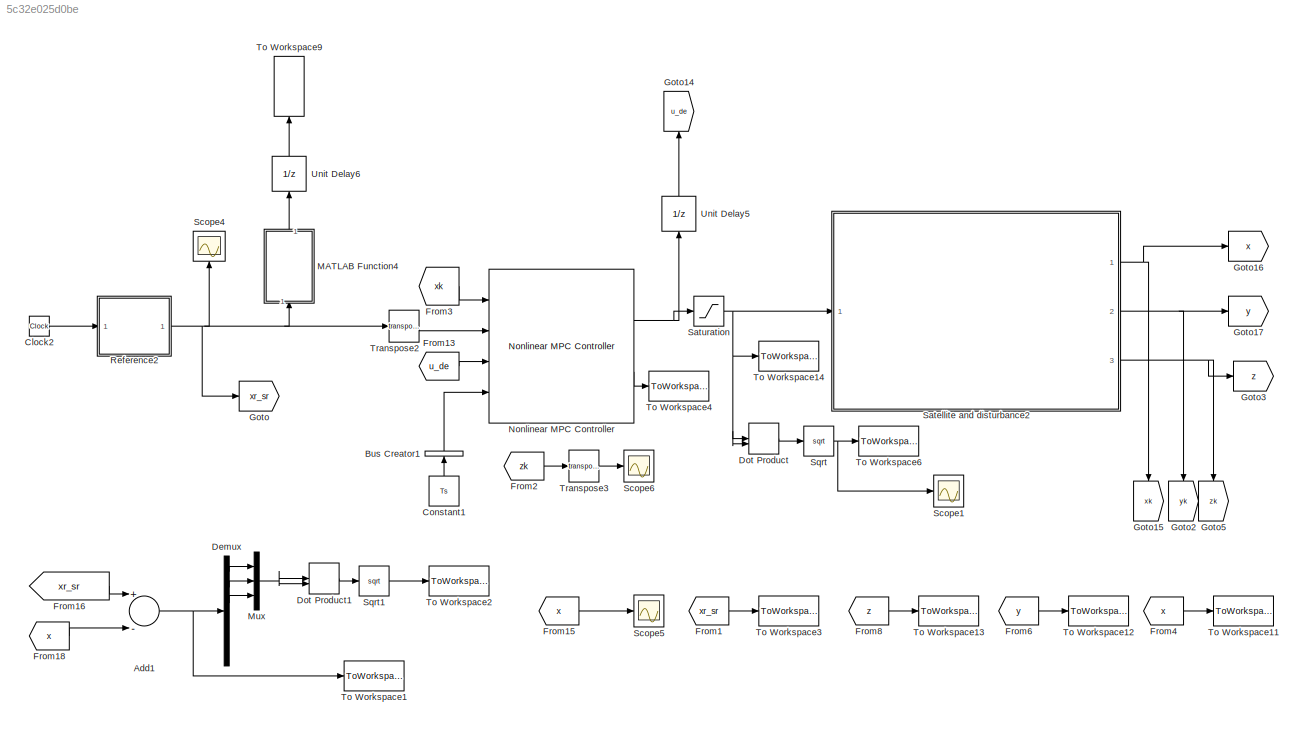
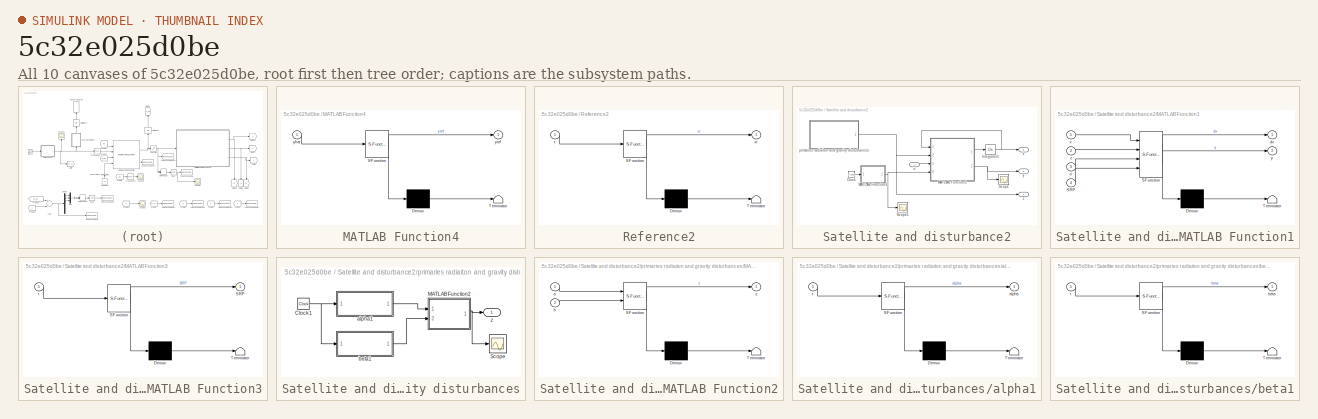
[diagram: thumbnail index - all 10 canvases of the model, root first then tree order]
MODEL slx_5c32e025d0be
KIND model
CONFIG AbsTol = auto
CONFIG EnableMultiTasking = off
CONFIG FixedStep = auto
CONFIG MaxStep = auto
CONFIG MinStep = auto
CONFIG RelTol = 1e-4
CONFIG SampleTimeConstraint = Unconstrained
CONFIG Solver = ode45
CONFIG SolverName = ode45
CONFIG StartTime = 0.0
CONFIG StopTime = simTime
BLOCK [Sum] Add1
  InputSameDT = off
  Inputs = +-
  OutDataTypeStr = Inherit: Inherit via internal rule
  Ports = [2, 1]
  SaturateOnIntegerOverflow = off
BLOCK [BusCreator] Bus Creator1
  DisplayOption = bar
  InheritFromInputs = off
  Inputs = 1
  NonVirtualBus = on
  OutDataTypeStr = Bus: myBusObject
  Ports = [1, 1]
BLOCK [Clock] Clock2
BLOCK [Constant] Constant1
  Value = Ts
BLOCK [Demux] Demux
  DisplayOption = bar
  Outputs = 6
  Ports = [1, 6]
BLOCK [DotProduct] Dot Product
  OutDataTypeStr = Inherit: Inherit via internal rule
BLOCK [DotProduct] Dot Product1
  OutDataTypeStr = Inherit: Inherit via internal rule
BLOCK [From] From1
  GotoTag = xr_sr
BLOCK [From] From13
  GotoTag = u_de
BLOCK [From] From15
  GotoTag = x
BLOCK [From] From16
  GotoTag = xr_sr
BLOCK [From] From18
  GotoTag = x
BLOCK [From] From2
  GotoTag = zk
BLOCK [From] From3
  GotoTag = xk
BLOCK [From] From4
  GotoTag = x
BLOCK [From] From6
  GotoTag = y
BLOCK [From] From8
  GotoTag = z
BLOCK [Goto] Goto
  GotoTag = xr_sr
BLOCK [Goto] Goto14
  GotoTag = u_de
BLOCK [Goto] Goto15
  GotoTag = xk
BLOCK [Goto] Goto16
  GotoTag = x
BLOCK [Goto] Goto17
  GotoTag = y
BLOCK [Goto] Goto2
  GotoTag = yk
BLOCK [Goto] Goto3
  GotoTag = z
BLOCK [Goto] Goto5
  GotoTag = zk
BLOCK [SubSystem] MATLAB Function4
  ErrorFcn = Stateflow.Translate.translate
  PermitHierarchicalResolution = ExplicitOnly
  Ports = [1, 1]
  RequestExecContextInheritance = off
  SFBlockType = MATLAB Function
  TreatAsAtomicUnit = on
BLOCK [Demux] MATLAB Function4/ Demux 
  Outputs = 1
  Ports = [1, 1]
BLOCK [S-Function] MATLAB Function4/ SFunction 
  EnableBusSupport = on
  FunctionName = sf_sfun
  PortCounts = [1 2]
  Ports = [1, 2]
  SFcnIsStateOwnerBlock = off
  SFunctionDeploymentMode = off
  Tag = Stateflow S-Function 3
BLOCK [Terminator] MATLAB Function4/ Terminator 
BLOCK [Inport] MATLAB Function4/yhat
  IconDisplay = Port number
BLOCK [Outport] MATLAB Function4/yref
  IconDisplay = Port number
BLOCK [Mux] Mux
  DisplayOption = bar
  Inputs = 3
  Ports = [3, 1]
BLOCK [Reference] Nonlinear MPC Controller  REF=mpclib/Nonlinear MPC Controller  (lib defined in mdl_ae329e0e0455)
  Ports = [4, 2]
  SCDEnableBlockLinearizationSpecification = on
  SourceBlock = mpclib/Nonlinear MPC Controller
  SourceProductBaseCode = MP
  SourceProductName = Model Predictive Control Toolbox
  SourceType = NonlinearMPC
BLOCK [SubSystem] Reference2
  ErrorFcn = Stateflow.Translate.translate
  PermitHierarchicalResolution = ExplicitOnly
  Ports = [1, 1]
  RequestExecContextInheritance = off
  SFBlockType = MATLAB Function
  TreatAsAtomicUnit = on
BLOCK [Demux] Reference2/ Demux 
  Outputs = 1
  Ports = [1, 1]
BLOCK [S-Function] Reference2/ SFunction 
  EnableBusSupport = on
  FunctionName = sf_sfun
  Parameters = L2,Omega,Omega_z,c,k
  PortCounts = [1 2]
  Ports = [1, 2]
  SFcnIsStateOwnerBlock = off
  SFunctionDeploymentMode = off
  Tag = Stateflow S-Function 8
BLOCK [Terminator] Reference2/ Terminator 
BLOCK [Inport] Reference2/t
  IconDisplay = Port number
BLOCK [Outport] Reference2/xr
  IconDisplay = Port number
BLOCK [SubSystem] Satellite and disturbance2
  Ports = [1, 3]
  RequestExecContextInheritance = off
BLOCK [Clock] Satellite and disturbance2/Clock
BLOCK [Integrator] Satellite and disturbance2/Integrator1
  InitialCondition = x0
  Ports = [1, 1]
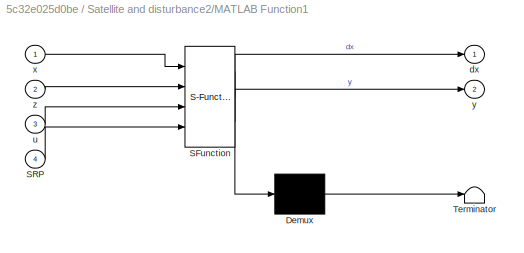
BLOCK [SubSystem] Satellite and disturbance2/MATLAB Function1
  ErrorFcn = Stateflow.Translate.translate
  PermitHierarchicalResolution = ExplicitOnly
  Ports = [4, 2]
  RequestExecContextInheritance = off
  SFBlockType = MATLAB Function
  TreatAsAtomicUnit = on
BLOCK [Demux] Satellite and disturbance2/MATLAB Function1/ Demux 
  Outputs = 1
  Ports = [1, 1]
BLOCK [S-Function] Satellite and disturbance2/MATLAB Function1/ SFunction 
  EnableBusSupport = on
  FunctionName = sf_sfun
  Parameters = mu
  PortCounts = [4 3]
  Ports = [4, 3]
  SFcnIsStateOwnerBlock = off
  SFunctionDeploymentMode = off
  Tag = Stateflow S-Function 11
BLOCK [Terminator] Satellite and disturbance2/MATLAB Function1/ Terminator 
BLOCK [Inport] Satellite and disturbance2/MATLAB Function1/SRP
  IconDisplay = Port number
  Port = 4
BLOCK [Outport] Satellite and disturbance2/MATLAB Function1/dx
  IconDisplay = Port number
BLOCK [Inport] Satellite and disturbance2/MATLAB Function1/u
  IconDisplay = Port number
  Port = 3
BLOCK [Inport] Satellite and disturbance2/MATLAB Function1/x
  IconDisplay = Port number
BLOCK [Outport] Satellite and disturbance2/MATLAB Function1/y
  IconDisplay = Port number
  Port = 2
BLOCK [Inport] Satellite and disturbance2/MATLAB Function1/z
  IconDisplay = Port number
  Port = 2
BLOCK [SubSystem] Satellite and disturbance2/MATLAB Function3
  ErrorFcn = Stateflow.Translate.translate
  PermitHierarchicalResolution = ExplicitOnly
  Ports = [1, 1]
  RequestExecContextInheritance = off
  SFBlockType = MATLAB Function
  TreatAsAtomicUnit = on
BLOCK [Demux] Satellite and disturbance2/MATLAB Function3/ Demux 
  Outputs = 1
  Ports = [1, 1]
BLOCK [S-Function] Satellite and disturbance2/MATLAB Function3/ SFunction 
  EnableBusSupport = on
  FunctionName = sf_sfun
  Parameters = Gsc,sped,srp,zeta
  PortCounts = [1 2]
  Ports = [1, 2]
  SFcnIsStateOwnerBlock = off
  SFunctionDeploymentMode = off
  Tag = Stateflow S-Function 2
BLOCK [Terminator] Satellite and disturbance2/MATLAB Function3/ Terminator 
BLOCK [Outport] Satellite and disturbance2/MATLAB Function3/SRP
  IconDisplay = Port number
BLOCK [Inport] Satellite and disturbance2/MATLAB Function3/t
  IconDisplay = Port number
BLOCK [Scope] Satellite and disturbance2/Scope
  Floating = off
  NumInputPorts = 1
  Ports = [1]
  ScopeSpecificationString = Simulink.scopes.TimeScopeBlockCfg('CurrentConfiguration', extmgr.ConfigurationSet(extmgr.Configuration('Core','General UI',true),extmgr.Configuration('Core','Source UI',true),extmgr.Configuration('Sources','WiredSimulink',true,'DataLoggingVariableName','ScopeData1'),extmgr.Configuration('Visuals','Time Domain',true,'SerializedDisplays',{struct('MinYLimReal','-0.26036','MaxYLimReal','1.35737','YLab...<+1525ch>
BLOCK [Scope] Satellite and disturbance2/Scope1
  Floating = off
  NumInputPorts = 1
  Ports = [1]
  ScopeSpecificationString = Simulink.scopes.TimeScopeBlockCfg('CurrentConfiguration', extmgr.ConfigurationSet(extmgr.Configuration('Core','General UI',true),extmgr.Configuration('Core','Source UI',true),extmgr.Configuration('Sources','WiredSimulink',true,'DataLoggingVariableName','ScopeData2'),extmgr.Configuration('Visuals','Time Domain',true,'SerializedDisplays',{struct('MinYLimReal','-0.0000006','MaxYLimReal','0.0000051','...<+1460ch>
BLOCK [SubSystem] Satellite and disturbance2/primaries radiaiton and gravity disturbances
  Ports = [0, 1]
  RequestExecContextInheritance = off
BLOCK [Clock] Satellite and disturbance2/primaries radiaiton and gravity disturbances/Clock1
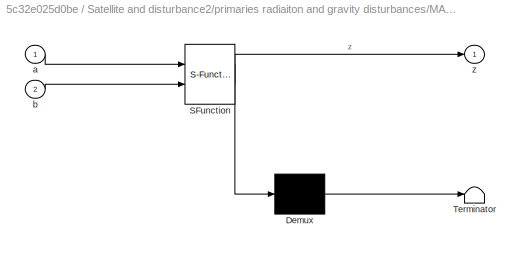
BLOCK [SubSystem] Satellite and disturbance2/primaries radiaiton and gravity disturbances/MATLAB Function2
  ErrorFcn = Stateflow.Translate.translate
  PermitHierarchicalResolution = ExplicitOnly
  Ports = [2, 1]
  RequestExecContextInheritance = off
  SFBlockType = MATLAB Function
  TreatAsAtomicUnit = on
BLOCK [Demux] Satellite and disturbance2/primaries radiaiton and gravity disturbances/MATLAB Function2/ Demux 
  Outputs = 1
  Ports = [1, 1]
BLOCK [S-Function] Satellite and disturbance2/primaries radiaiton and gravity disturbances/MATLAB Function2/ SFunction 
  EnableBusSupport = on
  FunctionName = sf_sfun
  Parameters = disturbance,mu
  PortCounts = [2 2]
  Ports = [2, 2]
  SFcnIsStateOwnerBlock = off
  SFunctionDeploymentMode = off
  Tag = Stateflow S-Function 12
BLOCK [Terminator] Satellite and disturbance2/primaries radiaiton and gravity disturbances/MATLAB Function2/ Terminator 
BLOCK [Inport] Satellite and disturbance2/primaries radiaiton and gravity disturbances/MATLAB Function2/a
  IconDisplay = Port number
BLOCK [Inport] Satellite and disturbance2/primaries radiaiton and gravity disturbances/MATLAB Function2/b
  IconDisplay = Port number
  Port = 2
BLOCK [Outport] Satellite and disturbance2/primaries radiaiton and gravity disturbances/MATLAB Function2/z
  IconDisplay = Port number
BLOCK [Scope] Satellite and disturbance2/primaries radiaiton and gravity disturbances/Scope
  Floating = off
  NumInputPorts = 1
  Ports = [1]
  ScopeSpecificationString = Simulink.scopes.TimeScopeBlockCfg('CurrentConfiguration', extmgr.ConfigurationSet(extmgr.Configuration('Core','General UI',true),extmgr.Configuration('Core','Source UI',true),extmgr.Configuration('Sources','WiredSimulink',true,'DataLoggingVariableName','ScopeData1'),extmgr.Configuration('Visuals','Time Domain',true,'SerializedDisplays',{struct('MinYLimReal','-1.00000','MaxYLimReal','1.00000','YLab...<+1440ch>
BLOCK [SubSystem] Satellite and disturbance2/primaries radiaiton and gravity disturbances/alpha1
  ErrorFcn = Stateflow.Translate.translate
  PermitHierarchicalResolution = ExplicitOnly
  Ports = [1, 1]
  RequestExecContextInheritance = off
  SFBlockType = MATLAB Function
  TreatAsAtomicUnit = on
BLOCK [Demux] Satellite and disturbance2/primaries radiaiton and gravity disturbances/alpha1/ Demux 
  Outputs = 1
  Ports = [1, 1]
BLOCK [S-Function] Satellite and disturbance2/primaries radiaiton and gravity disturbances/alpha1/ SFunction 
  EnableBusSupport = on
  FunctionName = sf_sfun
  Parameters = a,e,phi
  PortCounts = [1 2]
  Ports = [1, 2]
  SFcnIsStateOwnerBlock = off
  SFunctionDeploymentMode = off
  Tag = Stateflow S-Function 13
BLOCK [Terminator] Satellite and disturbance2/primaries radiaiton and gravity disturbances/alpha1/ Terminator 
BLOCK [Outport] Satellite and disturbance2/primaries radiaiton and gravity disturbances/alpha1/alpha
  IconDisplay = Port number
BLOCK [Inport] Satellite and disturbance2/primaries radiaiton and gravity disturbances/alpha1/t
  IconDisplay = Port number
BLOCK [SubSystem] Satellite and disturbance2/primaries radiaiton and gravity disturbances/beta1
  ErrorFcn = Stateflow.Translate.translate
  PermitHierarchicalResolution = ExplicitOnly
  Ports = [1, 1]
  RequestExecContextInheritance = off
  SFBlockType = MATLAB Function
  TreatAsAtomicUnit = on
BLOCK [Demux] Satellite and disturbance2/primaries radiaiton and gravity disturbances/beta1/ Demux 
  Outputs = 1
  Ports = [1, 1]
BLOCK [S-Function] Satellite and disturbance2/primaries radiaiton and gravity disturbances/beta1/ SFunction 
  EnableBusSupport = on
  FunctionName = sf_sfun
  Parameters = b,e,phi
  PortCounts = [1 2]
  Ports = [1, 2]
  SFcnIsStateOwnerBlock = off
  SFunctionDeploymentMode = off
  Tag = Stateflow S-Function 14
BLOCK [Terminator] Satellite and disturbance2/primaries radiaiton and gravity disturbances/beta1/ Terminator 
BLOCK [Outport] Satellite and disturbance2/primaries radiaiton and gravity disturbances/beta1/beta
  IconDisplay = Port number
BLOCK [Inport] Satellite and disturbance2/primaries radiaiton and gravity disturbances/beta1/t
  IconDisplay = Port number
BLOCK [Outport] Satellite and disturbance2/primaries radiaiton and gravity disturbances/z
  IconDisplay = Port number
BLOCK [Inport] Satellite and disturbance2/u
  IconDisplay = Port number
BLOCK [Outport] Satellite and disturbance2/x 
  IconDisplay = Port number
BLOCK [Outport] Satellite and disturbance2/y
  IconDisplay = Port number
  Port = 2
BLOCK [Outport] Satellite and disturbance2/z
  IconDisplay = Port number
  Port = 3
BLOCK [Saturate] Saturation
  InputPortMap = u0
  LowerLimit = -satValue
  Ports = [1, 1]
  UpperLimit = satValue
BLOCK [Scope] Scope1
  Floating = off
  NumInputPorts = 1
  Ports = [1]
  ScopeSpecificationString = Simulink.scopes.TimeScopeBlockCfg('CurrentConfiguration', extmgr.ConfigurationSet(extmgr.Configuration('Core','General UI',true),extmgr.Configuration('Core','Source UI',true),extmgr.Configuration('Sources','WiredSimulink',true,'DataLoggingVariableName','ScopeData1'),extmgr.Configuration('Visuals','Time Domain',true,'SerializedDisplays',{struct('MinYLimReal','-1.03728','MaxYLimReal','17.8037','YLab...<+1463ch>
BLOCK [Scope] Scope4
  Floating = off
  NumInputPorts = 1
  Ports = [1]
  ScopeSpecificationString = Simulink.scopes.TimeScopeBlockCfg('CurrentConfiguration', extmgr.ConfigurationSet(extmgr.Configuration('Core','General UI',true),extmgr.Configuration('Core','Source UI',true),extmgr.Configuration('Sources','WiredSimulink',true,'DataLoggingVariableName','ScopeData1'),extmgr.Configuration('Visuals','Time Domain',true,'SerializedDisplays',{struct('MinYLimReal','-1046.81653','MaxYLimReal','9415.2285',...<+2066ch>
BLOCK [Scope] Scope5
  Floating = off
  NumInputPorts = 1
  Ports = [1]
  ScopeSpecificationString = Simulink.scopes.TimeScopeBlockCfg('CurrentConfiguration', extmgr.ConfigurationSet(extmgr.Configuration('Core','General UI',true),extmgr.Configuration('Core','Source UI',true),extmgr.Configuration('Sources','WiredSimulink',true,'DataLoggingVariableName','ScopeData2'),extmgr.Configuration('Visuals','Time Domain',true,'SerializedDisplays',{struct('MinYLimReal','-0.18721','MaxYLimReal','1.31253','YLab...<+1606ch>
BLOCK [Scope] Scope6
  Floating = off
  NumInputPorts = 1
  Ports = [1]
  ScopeSpecificationString = Simulink.scopes.TimeScopeBlockCfg('CurrentConfiguration', extmgr.ConfigurationSet(extmgr.Configuration('Core','General UI',true),extmgr.Configuration('Core','Source UI',true),extmgr.Configuration('Sources','WiredSimulink',true,'DataLoggingVariableName','ScopeData3'),extmgr.Configuration('Visuals','Time Domain',true),extmgr.Configuration('Tools','Plot Navigation',true),extmgr.Configuration('Tools',...<+40ch>
BLOCK [Sqrt] Sqrt
BLOCK [Sqrt] Sqrt1
BLOCK [ToWorkspace] To Workspace1
  FixptAsFi = on
  MaxDataPoints = inf
  Ports = [1]
  SampleTime = 10^-3
  VariableName = error
BLOCK [ToWorkspace] To Workspace11
  FixptAsFi = on
  MaxDataPoints = inf
  Ports = [1]
  SampleTime = 10^-3
  VariableName = x
BLOCK [ToWorkspace] To Workspace12
  FixptAsFi = on
  MaxDataPoints = inf
  Ports = [1]
  SampleTime = 10^-3
  VariableName = y
BLOCK [ToWorkspace] To Workspace13
  FixptAsFi = on
  MaxDataPoints = inf
  Ports = [1]
  SampleTime = 10^-3
  VariableName = z
BLOCK [ToWorkspace] To Workspace14
  FixptAsFi = on
  MaxDataPoints = inf
  Ports = [1]
  SampleTime = 10^-3
  VariableName = u
BLOCK [ToWorkspace] To Workspace2
  FixptAsFi = on
  MaxDataPoints = inf
  Ports = [1]
  SampleTime = 10^-3
  VariableName = e_rms
BLOCK [ToWorkspace] To Workspace3
  FixptAsFi = on
  MaxDataPoints = inf
  Ports = [1]
  SampleTime = 10^-3
  VariableName = xr
BLOCK [ToWorkspace] To Workspace4
  FixptAsFi = on
  MaxDataPoints = inf
  Ports = [1]
  SampleTime = 10^-3
  VariableName = srmpcstatus
BLOCK [ToWorkspace] To Workspace6
  FixptAsFi = on
  MaxDataPoints = inf
  Ports = [1]
  SampleTime = 10^-3
  VariableName = DeltaV
BLOCK [ToWorkspace] To Workspace9
  FixptAsFi = on
  MaxDataPoints = inf
  Ports = [1]
  SampleTime = delta
  VariableName = ref
BLOCK [Math] Transpose2
  Operator = transpose
  Ports = [1, 1]
  SignedPower = off
BLOCK [Math] Transpose3
  Operator = transpose
  Ports = [1, 1]
  SignedPower = off
BLOCK [UnitDelay] Unit Delay5
  HasFrameUpgradeWarning = on
  InitialCondition = u0
  SampleTime = delta
BLOCK [UnitDelay] Unit Delay6
  HasFrameUpgradeWarning = on
  InitialCondition = x0
  SampleTime = delta
NET Add1:1 -> Demux:1, To Workspace1:1
LINE Bus Creator1:1 -> Nonlinear MPC Controller:4
LINE Clock2:1 -> Reference2:1
LINE Constant1:1 -> Bus Creator1:1
LINE Demux:1 -> Mux:1
LINE Demux:2 -> Mux:2
LINE Demux:3 -> Mux:3
LINE Dot Product1:1 -> Sqrt1:1
LINE Dot Product:1 -> Sqrt:1
LINE From13:1 -> Nonlinear MPC Controller:3
LINE From15:1 -> Scope5:1
LINE From16:1 -> Add1:1
LINE From18:1 -> Add1:2
LINE From1:1 -> To Workspace3:1
LINE From2:1 -> Transpose3:1
LINE From3:1 -> Nonlinear MPC Controller:1
LINE From4:1 -> To Workspace11:1
LINE From6:1 -> To Workspace12:1
LINE From8:1 -> To Workspace13:1
LINE MATLAB Function4:1 -> Unit Delay6:1
NET Mux:1 -> Dot Product1:1, Dot Product1:2
NET Nonlinear MPC Controller:1 -> Saturation:1, Unit Delay5:1
LINE Nonlinear MPC Controller:2 -> To Workspace4:1
NET Reference2:1 -> Goto:1, MATLAB Function4:1, Scope4:1, Transpose2:1
LINE Satellite and disturbance2/Clock:1 -> Satellite and disturbance2/MATLAB Function3:1
NET Satellite and disturbance2/Integrator1:1 -> Satellite and disturbance2/MATLAB Function1:1, Satellite and disturbance2/x :1
LINE Satellite and disturbance2/MATLAB Function1:1 -> Satellite and disturbance2/Integrator1:1
NET Satellite and disturbance2/MATLAB Function1:2 -> Satellite and disturbance2/Scope:1, Satellite and disturbance2/y:1
NET Satellite and disturbance2/MATLAB Function3:1 -> Satellite and disturbance2/MATLAB Function1:4, Satellite and disturbance2/Scope1:1
NET Satellite and disturbance2/primaries radiaiton and gravity disturbances/Clock1:1 -> Satellite and disturbance2/primaries radiaiton and gravity disturbances/alpha1:1, Satellite and disturbance2/primaries radiaiton and gravity disturbances/beta1:1
NET Satellite and disturbance2/primaries radiaiton and gravity disturbances/MATLAB Function2:1 -> Satellite and disturbance2/primaries radiaiton and gravity disturbances/Scope:1, Satellite and disturbance2/primaries radiaiton and gravity disturbances/z:1
LINE Satellite and disturbance2/primaries radiaiton and gravity disturbances/alpha1:1 -> Satellite and disturbance2/primaries radiaiton and gravity disturbances/MATLAB Function2:1
LINE Satellite and disturbance2/primaries radiaiton and gravity disturbances/beta1:1 -> Satellite and disturbance2/primaries radiaiton and gravity disturbances/MATLAB Function2:2
NET Satellite and disturbance2/primaries radiaiton and gravity disturbances:1 -> Satellite and disturbance2/MATLAB Function1:2, Satellite and disturbance2/z:1
LINE Satellite and disturbance2/u:1 -> Satellite and disturbance2/MATLAB Function1:3
NET Satellite and disturbance2:1 -> Goto15:1, Goto16:1
NET Satellite and disturbance2:2 -> Goto17:1, Goto2:1
NET Satellite and disturbance2:3 -> Goto3:1, Goto5:1
NET Saturation:1 -> Dot Product:1, Dot Product:2, Satellite and disturbance2:1, To Workspace14:1
LINE Sqrt1:1 -> To Workspace2:1
NET Sqrt:1 -> Scope1:1, To Workspace6:1
LINE Transpose2:1 -> Nonlinear MPC Controller:2
LINE Transpose3:1 -> Scope6:1
LINE Unit Delay5:1 -> Goto14:1
LINE Unit Delay6:1 -> To Workspace9:1
note: NET lines group one-source signal fan-out (src -> all destinations, sorted); 1:1 wires keep LINE
CHART Satellite and disturbance2/MATLAB Function3 states=1 transitions=1
  STATE_LABEL 'eML_blk_kernel()'
  STATE_LABEL 'SCRIPT:\nfunction SRP = fcn(srp, Gsc, sped, zeta,t)\n\nif srp == 1\n    SRP = [(Gsc/sped)*(cos(zeta*t))^2;(Gsc/sped)*(sin(zeta*t))^2;0];\nelse\n    SRP = [0;0;0];\nend\n'
CHART MATLAB Function4 states=1 transitions=1
  STATE_LABEL 'eML_blk_kernel()'
  STATE_LABEL 'SCRIPT:\nfunction yref = fcn(yhat)\n\nyref = yhat(:,1);\n'
CHART Reference2 states=1 transitions=1
  STATE_LABEL 'eML_blk_kernel()'
  STATE_LABEL 'SCRIPT:\nfunction xr = refer(t,c,Omega,Omega_z,L2,k)\n%#codegen\n\nSeq = [L2;0;0;0;0;0];\n\n\nho1 = [(-k*(1-c(1)+Omega^2)/(2*Omega))*cos(Omega*t);\n       k*sin(Omega*t);\n       k*cos(Omega_z*t)];\n   \ndiffho1 = [(k*(1-c(1)+Omega^2)/2)*sin(Omega*t);\n           Omega*k*cos(Omega*t);\n           -Omega_z*k*sin(Omega_z*t)];\n      \nxr = Seq + [ho1;diffho1];\n\n\n\n'
CHART Satellite and disturbance2/MATLAB Function1 states=1 transitions=1
  STATE_LABEL 'eML_blk_kernel()'
  STATE_LABEL 'SCRIPT:\nfunction [dx, y] = Satellite(x,z, u, mu, SRP)\n\nx1 = x(1:3);\nx2 = x(4:6);\n\nM = [-1 0 0;\n    0 -1 0;\n    0 0 0];\n\nN = [0 -1 0;\n    1 0 0;\n    0 0 0];\n\nd1r = [-mu - z(4)/(1-mu);0;0];\nd2r = [1-mu + z(4)/mu;0;0];\n\ned1 = x1 - d1r;\nabsed1 = sqrt(ed1(1)^2+ed1(2)^2+ed1(3)^2);\ned2 = x1 - d2r;\nabsed2 = sqrt(ed2(1)^2+ed2(2)^2+ed2(3)^2);\n\nf1 = x2;\nf2 = -M*x1 - 2*N*x2 - (2*M*x1 + 2*N*x2)*z(1) ...\n      ...<+1225ch>'
CHART Satellite and disturbance2/primaries radiaiton and gravity disturbances/MATLAB Function2 states=1 transitions=1
  STATE_LABEL 'eML_blk_kernel()'
  STATE_LABEL 'SCRIPT:\nfunction z = z(a,b,mu, disturbance)\n%#codegen\nif disturbance == 1\n    z = [b;mu*(1-mu)*a];\nelse\n    z = zeros(4,1);\nend'
CHART Satellite and disturbance2/primaries radiaiton and gravity disturbances/alpha1 states=1 transitions=1
  STATE_LABEL 'eML_blk_kernel()'
  STATE_LABEL 'SCRIPT:\nfunction alpha = a(t,a,phi,e)\n%#codegen\n\na1 = a(1)*e*cos(t+phi);\nalpha = a1;\n'
CHART Satellite and disturbance2/primaries radiaiton and gravity disturbances/beta1 states=1 transitions=1
  STATE_LABEL 'eML_blk_kernel()'
  STATE_LABEL 'SCRIPT:\nfunction beta = b(t,b,phi,e)\n%#codegen\nb1 = b(1)*e*cos(t+phi);\nbd = -b(1)*e*sin(t+phi);\nbeta = [b1;0;bd];\n'
